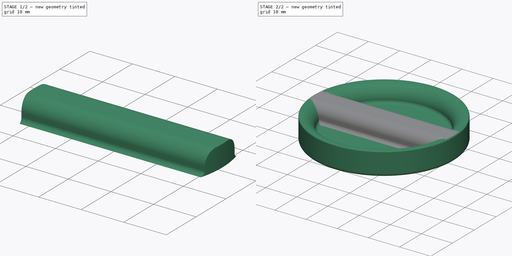
[diagram: build sequence overview — one tinted view per stage of 2, left to right]
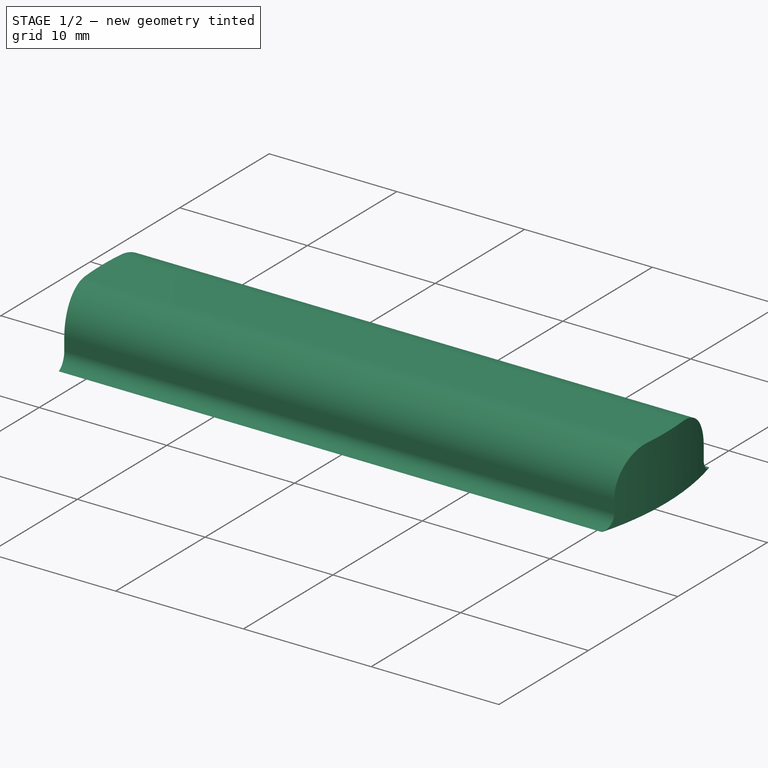
[diagram: stage 1 of 2 — iso view after this stage's code; geometry added in this stage tinted green]
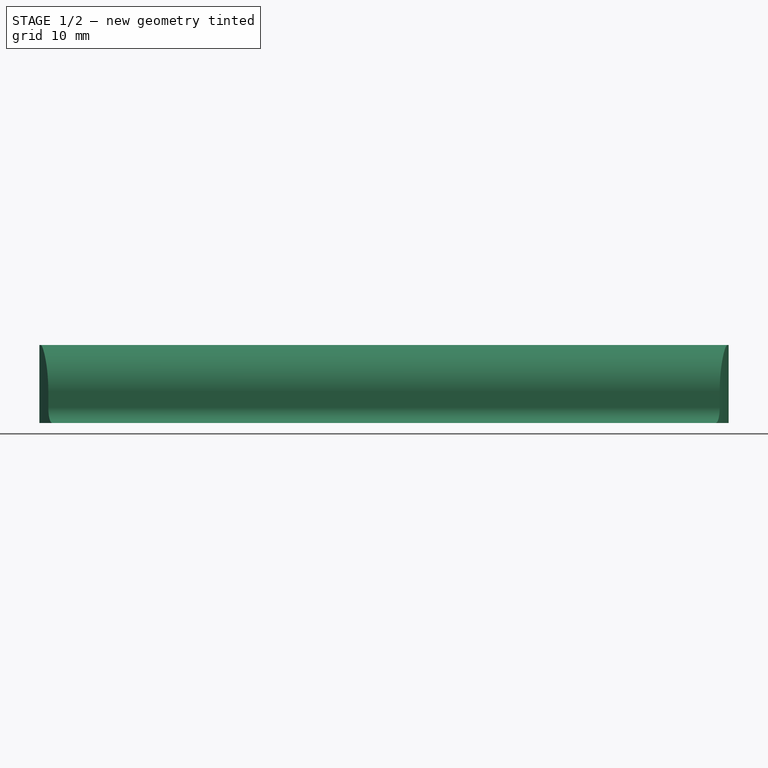
[diagram: stage 1 of 2 — front view after this stage's code; geometry added in this stage tinted green]
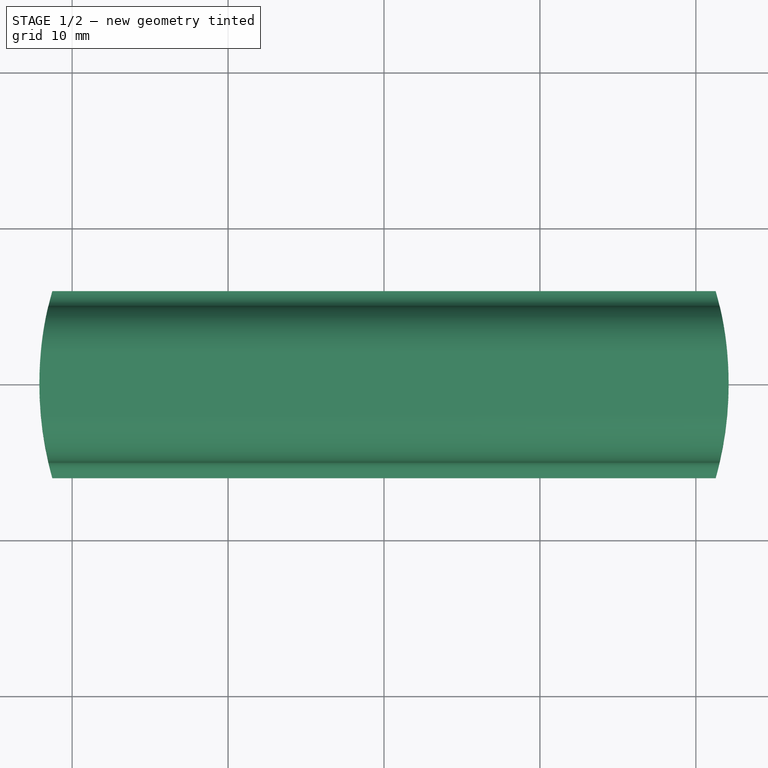
[diagram: stage 1 of 2 — top view after this stage's code; geometry added in this stage tinted green]
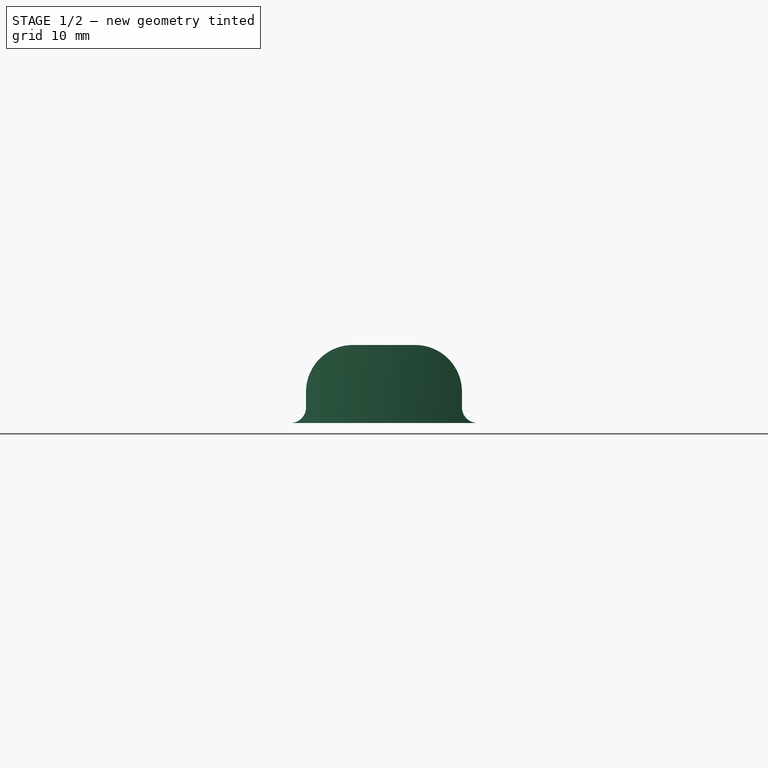
[diagram: stage 1 of 2 — right view after this stage's code; geometry added in this stage tinted green]
FCSTD DOCUMENT  (FreeCAD 0.22R37898 (Git))
Label: potentiometer knob
License: All rights reserved
LicenseURL: http://en.wikipedia.org/wiki/All_rights_reserved
objects: Sketcher::SketchObject×4, PartDesign::Pad×1, PartDesign::Pocket×1, PartDesign::Revolution×1, PartDesign::Hole×1, PartDesign::Body×1
note: 13 computed .brp shape members not serialized (recipe doc carries the construction recipe); baked Part::Feature solids carry a one-line shape summary decoded from their .brp

FEATURE [Sketcher::SketchObject] Sketch
  AttachmentSupport = -> [XZ_Plane]
  FullyConstrained = true
  MapMode = 5
  Placement = pos=(0,0,0) rot=(1,0,0;1.5708rad)
  sketch-geometry (10):
    g0: ArcOfCircle CenterX=22.1 CenterY=3.5 CenterZ=0 NormalX=0 NormalY=0 NormalZ=1 AngleXU=0 Radius=4 StartAngle=1.5708 EndAngle=3.14159
    g1: LineSegment StartX=22.5 StartY=7.1 StartZ=0 EndX=22.5 EndY=1 EndZ=0
    g2: LineSegment StartX=16.51 StartY=0 StartZ=0 EndX=0 EndY=0 EndZ=0
    g3: ArcOfCircle CenterX=18.755 CenterY=-0.5 CenterZ=0 NormalX=0 NormalY=0 NormalZ=1 AngleXU=0 Radius=2.3 StartAngle=0.219141 EndAngle=2.92245
    g4: LineSegment StartX=17.1 StartY=2.5 StartZ=0 EndX=0 EndY=2.5 EndZ=0
    g5: ArcOfCircle CenterX=22.1 CenterY=7.1 CenterZ=0 NormalX=0 NormalY=0 NormalZ=1 AngleXU=0 Radius=0.4 StartAngle=3e-16 EndAngle=1.5708
    g6: LineSegment StartX=21 StartY=0 StartZ=0 EndX=21.5 EndY=0 EndZ=0
    g7: ArcOfCircle CenterX=21.5 CenterY=1 CenterZ=0 NormalX=0 NormalY=0 NormalZ=1 AngleXU=0 Radius=1 StartAngle=4.71239 EndAngle=6.28319
    g8: LineSegment StartX=0 StartY=2.5 StartZ=0 EndX=0 EndY=0 EndZ=0
    g9: ArcOfCircle CenterX=17.1 CenterY=3.5 CenterZ=0 NormalX=0 NormalY=0 NormalZ=1 AngleXU=0 Radius=1 StartAngle=4.71239 EndAngle=6.28319
  constraints (29):
    c: Vertical(g1)
    c: Horizontal(g2)
    c: Horizontal(g4)
    c: PointOnObject(g4,g-2)
    c: DistanceX(g4,g0) = 22.1  'flange_tip'
    c: DistanceX(g-1,g1) = 22.5
    c: DistanceY(g-1,g4) = 2.5  'height'
    c: Tangent(g5,g1) = 1.5708
    c: Tangent(g5,g0) = -1.5708
    c: Radius(g5) = 0.4
    c: DistanceY(g4,g0) = 5  'flange_height'
    c: Horizontal(g0,g0)
    c: Coincident(g2,g-1)
    c: Radius(g3) = 2.3
    c: Coincident(g3,g2)
    c: Coincident(g6,g3)
    c: Horizontal(g6)
    c: Horizontal(g3,g2)
    c: Radius(g7) = 1
    c: Tangent(g7,g1) = 1.5708
    c: Tangent(g7,g6) = -1.5708
    c: DistanceX(g6,g6) = 0.5
    c: Radius(g0) = 4
    c: Coincident(g8,g4)
    c: Coincident(g8,g2)
    c: DistanceY(g3,g3) = 0.5
    c: Tangent(g9,g4) = 1.5708
    c: Radius(g9) = 1
    c: Tangent(g9,g0) = 1.5708
FEATURE [Sketcher::SketchObject] Sketch002
  AttachmentSupport = -> [YZ_Plane]
  FullyConstrained = true
  MapMode = 5
  Placement = pos=(0,0,0) rot=(0.57735,0.57735,0.57735;2.0944rad)
  expr: .Constraints.grip_height = <<Sketch>>.Constraints.flange_height
  expr: Constraints[4] = <<Sketch>>.Constraints.height
  sketch-geometry (8):
    g0: LineSegment StartX=-6 StartY=2.5 StartZ=0 EndX=6 EndY=2.5 EndZ=0
    g1: ArcOfCircle CenterX=6 CenterY=3.5 CenterZ=0 NormalX=0 NormalY=0 NormalZ=1 AngleXU=0 Radius=1 StartAngle=3.14159 EndAngle=4.71239
    g2: ArcOfCircle CenterX=-6 CenterY=3.5 CenterZ=0 NormalX=0 NormalY=0 NormalZ=1 AngleXU=0 Radius=1 StartAngle=4.71239 EndAngle=6.28319
    g3: LineSegment StartX=5 StartY=3.5 StartZ=0 EndX=5 EndY=4.5 EndZ=0
    g4: LineSegment StartX=-5 StartY=3.5 StartZ=0 EndX=-5 EndY=4.5 EndZ=0
    g5: LineSegment StartX=-2 StartY=7.5 StartZ=0 EndX=2 EndY=7.5 EndZ=0
    g6: ArcOfCircle CenterX=2 CenterY=4.5 CenterZ=0 NormalX=0 NormalY=0 NormalZ=1 AngleXU=0 Radius=3 StartAngle=1e-16 EndAngle=1.5708
    g7: ArcOfCircle CenterX=-2 CenterY=4.5 CenterZ=0 NormalX=0 NormalY=0 NormalZ=1 AngleXU=0 Radius=3 StartAngle=1.5708 EndAngle=3.14159
  constraints (19):
    c: Horizontal(g1,g2)
    c: Tangent(g1,g0) = -1.5708
    c: Tangent(g2,g0) = -1.5708
    c: Symmetric(g0,g0,g-2)
    c: DistanceY(g-1,g0) = 2.5
    c: Radius(g1) = 1
    c: Vertical(g3)
    c: Vertical(g4)
    c: Horizontal(g5)
    c: Tangent(g7,g5) = 1.5708
    c: Tangent(g6,g5) = 1.5708
    c: Equal(g6,g7)
    c: Tangent(g7,g4) = 1.5708
    c: Tangent(g6,g3) = -1.5708
    c: DistanceY(g0,g5) = 5  'grip_height'
    c: Radius(g6) = 3
    c: DistanceX(g4,g3) = 10
    c: Tangent(g4,g2) = -1.5708
    c: Tangent(g3,g1) = 1.5708
FEATURE [PartDesign::Pad] Pad
  Direction = (1,0,0)
  Length = 44.2
  Length2 = 10
  Midplane = true
  Placement = pos=(0,0,0) rot=(1,1,1;2.0944rad)
  Profile = -> Sketch002
  ReferenceAxis = -> Sketch002 [N_Axis]
  Suppressed = false
  Type = 0
  expr: Length = <<Sketch>>.Constraints.flange_tip * 2
FEATURE [Sketcher::SketchObject] Sketch003
  AttachmentSupport = -> [XY_Plane]
  FullyConstrained = true
  MapMode = 5
  expr: Constraints[1] = <<Sketch>>.Constraints.flange_tip
  expr: Constraints[3] = <<Sketch>>.Constraints.flange_tip * 2
  sketch-geometry (2):
    g0: Circle CenterX=0 CenterY=0 CenterZ=0 NormalX=0 NormalY=0 NormalZ=1 AngleXU=0 Radius=22.1
    g1: Circle CenterX=0 CenterY=0 CenterZ=0 NormalX=0 NormalY=0 NormalZ=1 AngleXU=0 Radius=44.2
  constraints (4):
    c: Coincident(g0,g-1)
    c: Radius(g0) = 22.1
    c: Coincident(g1,g0)
    c: Radius(g1) = 44.2
FEATURE [PartDesign::Pocket] Pocket
  BaseFeature = -> Pad
  Direction = (0,0,-1)
  Length = 5
  Length2 = 5
  Midplane = true
  Placement = pos=(0,0,0) rot=(1,1,1;2.0944rad)
  Profile = -> Sketch003
  ReferenceAxis = -> Sketch003 [N_Axis]
  Suppressed = false
  Type = 1
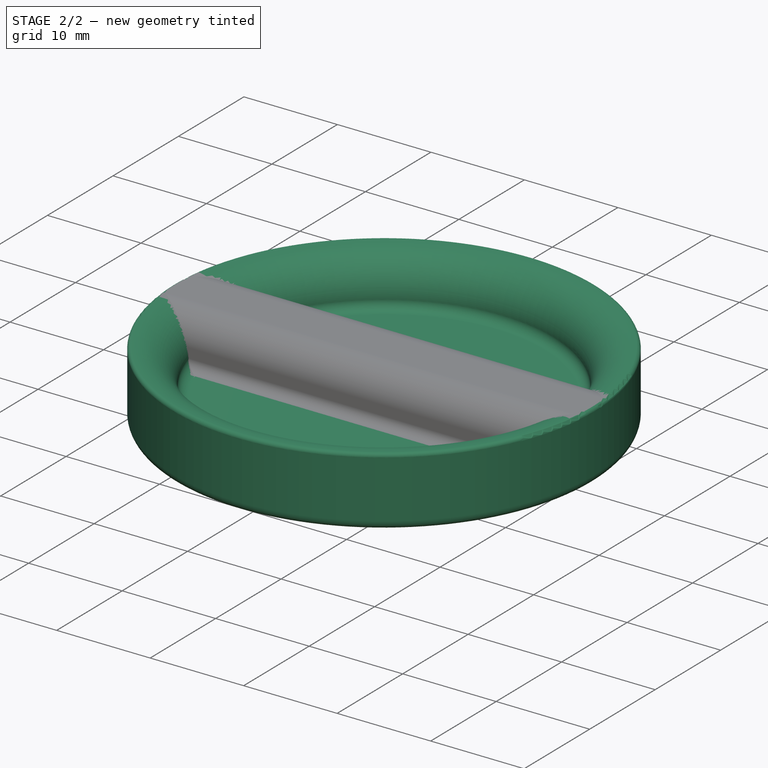
[diagram: stage 2 of 2 — iso view after this stage's code; geometry added in this stage tinted green]
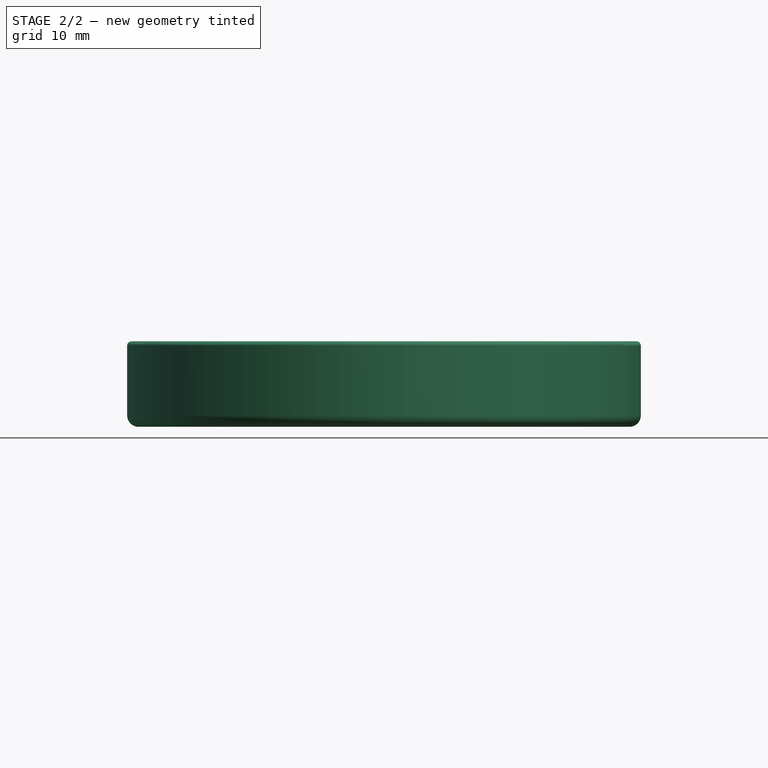
[diagram: stage 2 of 2 — front view after this stage's code; geometry added in this stage tinted green]
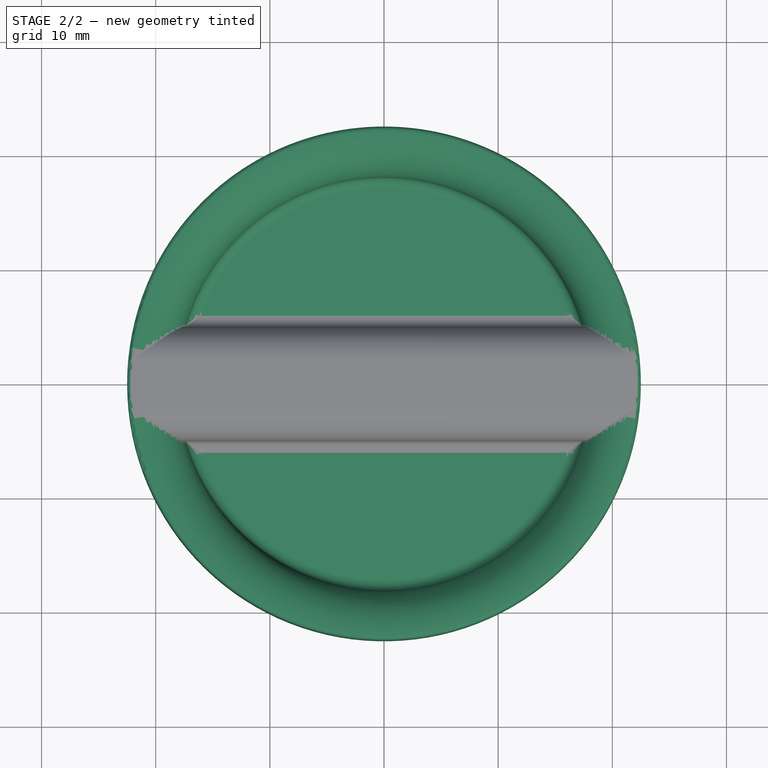
[diagram: stage 2 of 2 — top view after this stage's code; geometry added in this stage tinted green]
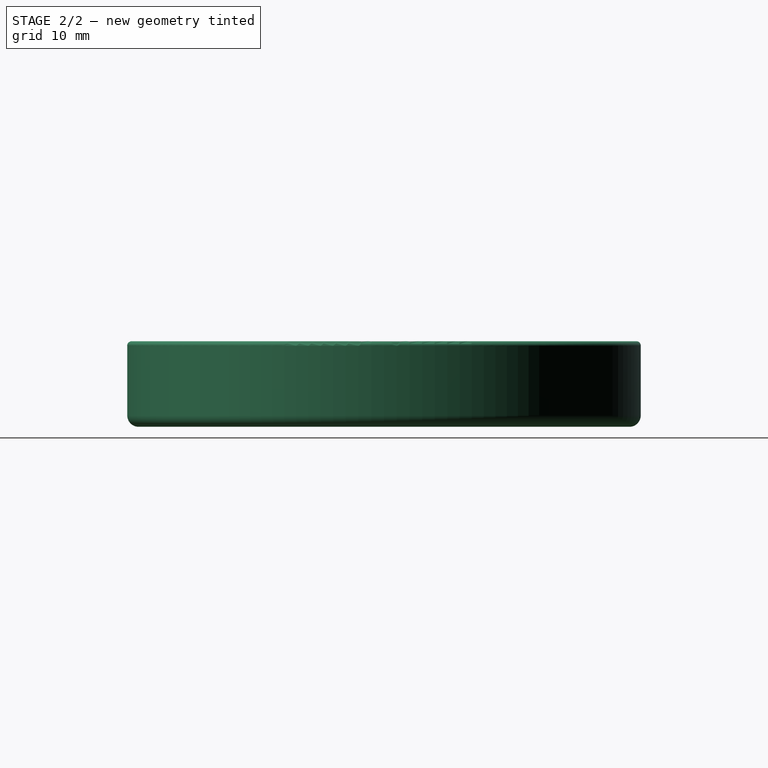
[diagram: stage 2 of 2 — right view after this stage's code; geometry added in this stage tinted green]
FEATURE [PartDesign::Revolution] Revolution
  Angle = 360
  Angle2 = 60
  Axis = (0,2e-16,1)
  Base = (0,0,0)
  BaseFeature = -> Pocket
  Placement = pos=(0,0,0) rot=(1,1,1;2.0944rad)
  Profile = -> Sketch
  ReferenceAxis = -> Sketch [V_Axis]
  Reversed = true
  Suppressed = false
  Type = 0
FEATURE [Sketcher::SketchObject] Sketch004
  AttachmentSupport = -> [XY_Plane]
  FullyConstrained = true
  MapMode = 5
  sketch-geometry (1):
    g0: Circle CenterX=0 CenterY=0 CenterZ=0 NormalX=0 NormalY=0 NormalZ=1 AngleXU=0 Radius=3
  constraints (2):
    c: Coincident(g0,g-1)
    c: Diameter(g0) = 6
FEATURE [PartDesign::Hole] Hole
  BaseFeature = -> Revolution
  CustomThreadClearance = 0
  Depth = 6.5
  DepthType = 0
  Diameter = 6
  DrillForDepth = false
  DrillPoint = 0
  DrillPointAngle = 118
  HoleCutCountersinkAngle = 90
  HoleCutCustomValues = false
  HoleCutDepth = 0
  HoleCutDiameter = 6.5
  HoleCutType = 2
  ModelThread = false
  Placement = pos=(0,0,0) rot=(1,1,1;2.0944rad)
  Profile = -> Sketch004
  Reversed = true
  Suppressed = false
  Tapered = false
  TaperedAngle = 90
  ThreadClass = 0
  ThreadDepth = 6.5
  ThreadDepthType = 0
  ThreadDirection = 0
  ThreadFit = 0
  ThreadSize = 0
  ThreadType = 0
  Threaded = false
  UseCustomThreadClearance = false
  expr: Depth = <<Sketch>>.Constraints.height + <<Sketch002>>.Constraints.grip_height - 1 mm
FEATURE [PartDesign::Body] Body  label="Knob"
  AllowCompound = false
  Group = -> [Pad,Pocket,Sketch,Revolution,Sketch002,Sketch003,Sketch004,Hole]
  Origin = -> Origin
  Tip = -> Hole
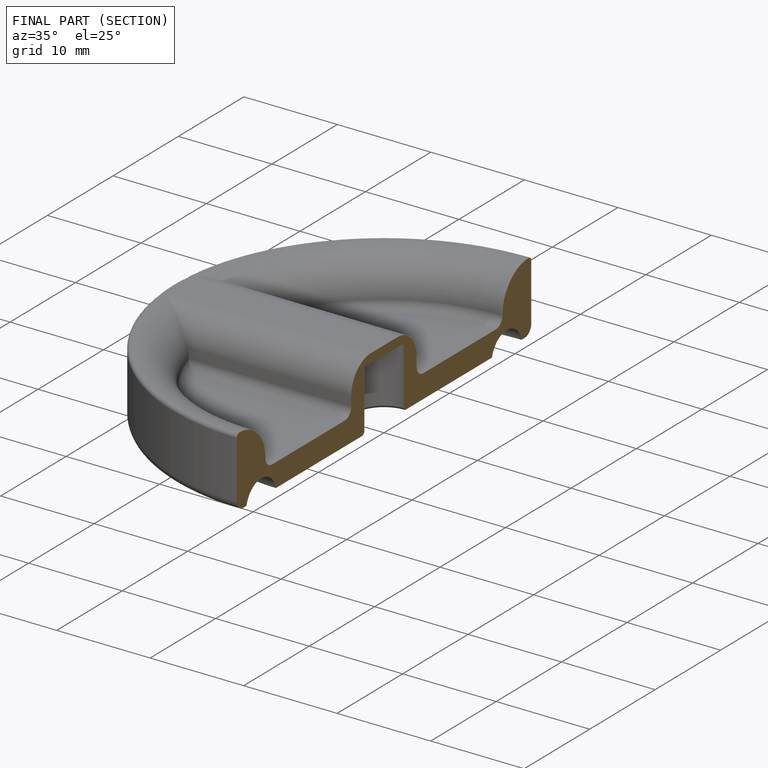
[diagram: finished part — half-section view (interior)]
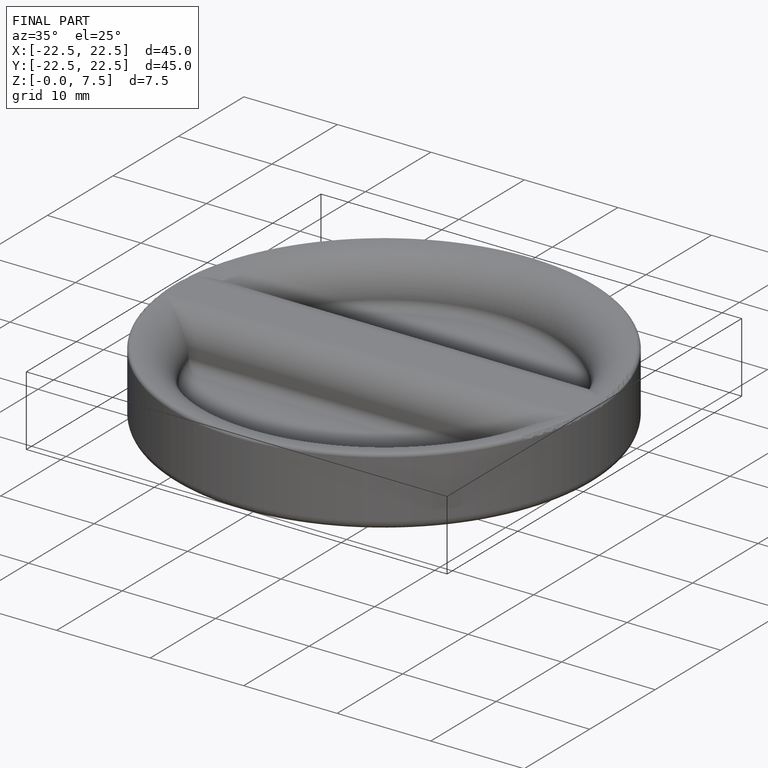
[diagram: finished part — iso view with bounding-box wireframe]
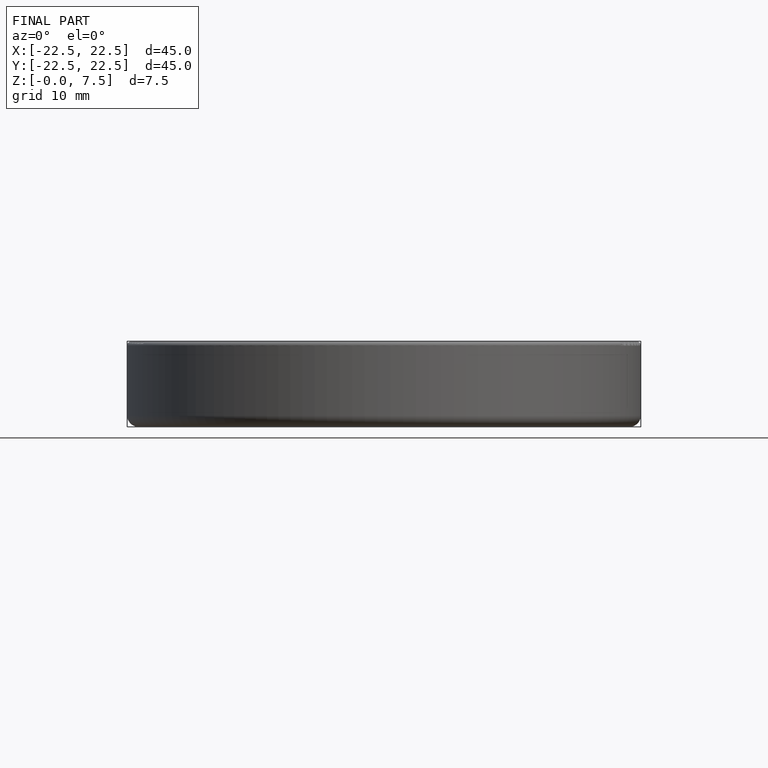
[diagram: finished part — front view with bounding-box wireframe]
